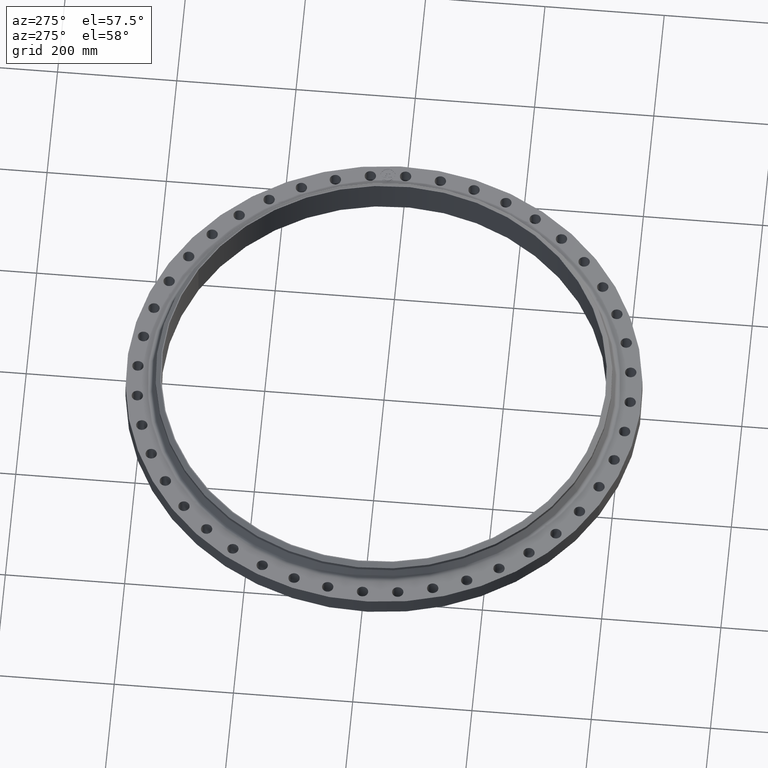
[diagram: clean part render]
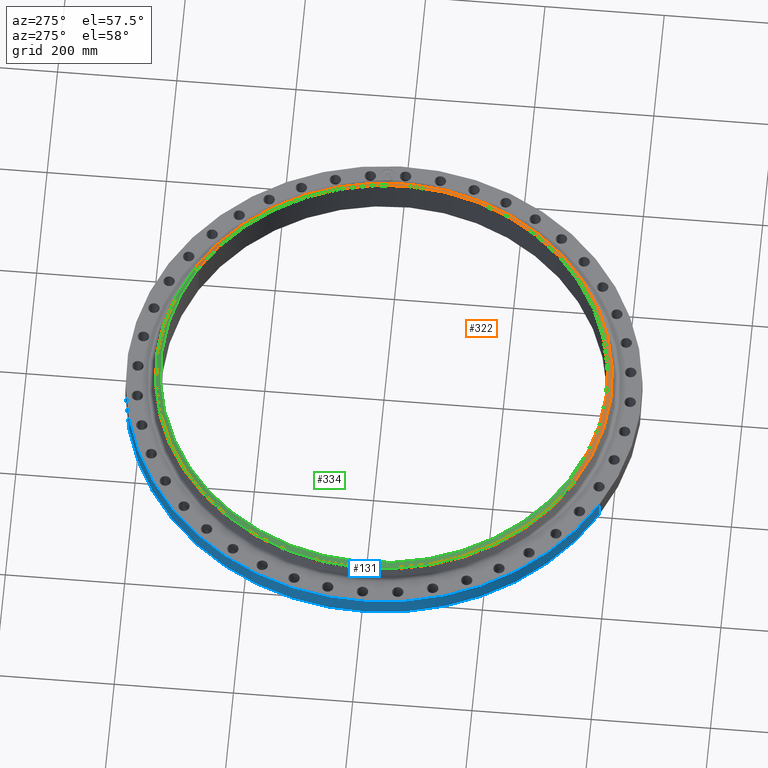
[diagram: same view with three faces highlighted in distinct colors, each labeled with its STEP entity id]
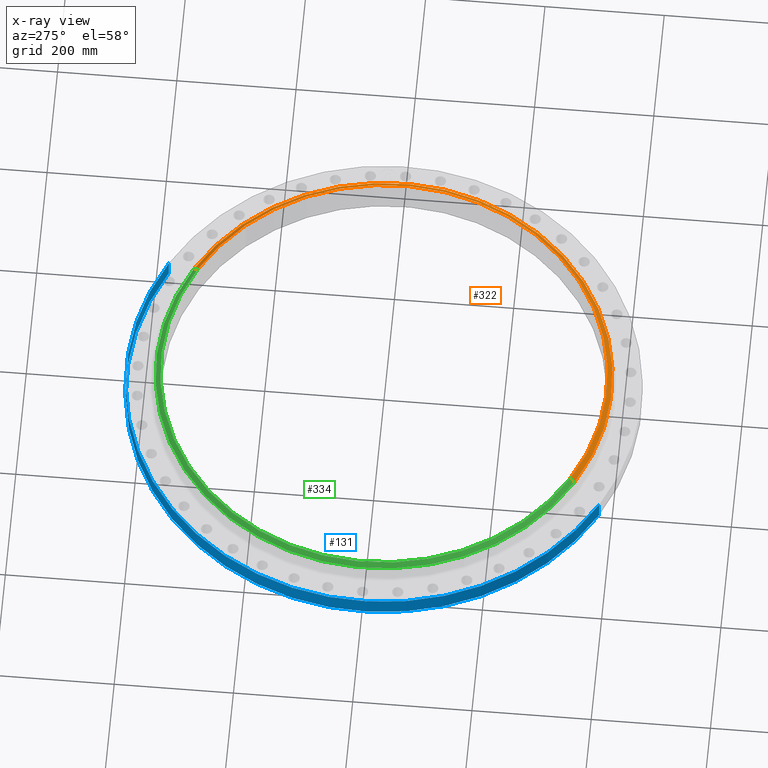
[diagram: x-ray of the same camera — body ghosted, the three highlighted faces saturated]
A machine part, auxiliary view with three faces highlighted in distinct colors.
The next image is the same camera in x-ray (body ghosted, the three faces saturated) — at least one of them is partly hidden behind the body in this view.
Their STEP definitions:

[orange] entity #322 — the highlighted conical surface has half-angle 52.5 deg.
#270=AXIS2_PLACEMENT_3D('Circle Axis2P3D',#268,#269,$) ;
#295=AXIS2_PLACEMENT_3D('Cone Axis2P3D',#292,#293,#294) ;
#306=AXIS2_PLACEMENT_3D('Circle Axis2P3D',#304,#305,$) ;
#258=CARTESIAN_POINT('Vertex',(-7.20576584525,-13.1900659053,2.26021031627)) ;
#265=CARTESIAN_POINT('Vertex',(7.20576584525,13.1900659053,2.26021031627)) ;
#268=CARTESIAN_POINT('Axis2P3D Location',(0.,0.,2.26021031627)) ;
#292=CARTESIAN_POINT('Axis2P3D Location',(0.,0.,2.50000000001)) ;
#297=CARTESIAN_POINT('Line Origine',(7.13085560484,13.05294363,2.38010515814)) ;
#301=CARTESIAN_POINT('Vertex',(7.05594536444,12.9158213547,2.50000000001)) ;
#304=CARTESIAN_POINT('Axis2P3D Location',(0.,0.,2.50000000001)) ;
#308=CARTESIAN_POINT('Vertex',(-7.05594536444,-12.9158213547,2.50000000001)) ;
#311=CARTESIAN_POINT('Line Origine',(-7.13085560484,-13.05294363,2.38010515814)) ;
#269=DIRECTION('Axis2P3D Direction',(0.,0.,-0.0393700787402)) ;
#293=DIRECTION('Axis2P3D Direction',(-0.,-0.,-0.0393700787402)) ;
#294=DIRECTION('Axis2P3D XDirection',(-0.0188750212049,-0.0345504945626,0.)) ;
#298=DIRECTION('Vector Direction',(0.014974561121,0.02741075027,-0.023966985394)) ;
#305=DIRECTION('Axis2P3D Direction',(0.,-0.,-0.0393700787402)) ;
#312=DIRECTION('Vector Direction',(-0.014974561121,-0.02741075027,-0.023966985394)) ;
#299=VECTOR('Line Direction',#298,0.0393700787402) ;
#313=VECTOR('Line Direction',#312,0.0393700787402) ;
#317=ORIENTED_EDGE('',*,*,#303,.F.) ;
#318=ORIENTED_EDGE('',*,*,#310,.T.) ;
#319=ORIENTED_EDGE('',*,*,#315,.T.) ;
#320=ORIENTED_EDGE('',*,*,#272,.F.) ;
#322=ADVANCED_FACE('PartBody',(#321),#296,.T.) ;
#271=CIRCLE('generated circle',#270,15.0300000001) ;
#307=CIRCLE('generated circle',#306,14.7175000001) ;
#296=CONICAL_SURFACE('Cone',#295,14.7175000001,0.916297857297) ;
#272=EDGE_CURVE('',#266,#259,#271,.T.) ;
#303=EDGE_CURVE('',#302,#266,#300,.T.) ;
#310=EDGE_CURVE('',#302,#309,#307,.T.) ;
#315=EDGE_CURVE('',#309,#259,#314,.T.) ;
#316=EDGE_LOOP('',(#317,#318,#319,#320)) ;
#321=FACE_OUTER_BOUND('',#316,.T.) ;
#300=LINE('Line',#297,#299) ;
#314=LINE('Line',#311,#313) ;
#259=VERTEX_POINT('',#258) ;
#266=VERTEX_POINT('',#265) ;
#302=VERTEX_POINT('',#301) ;
#309=VERTEX_POINT('',#308) ;

[blue] entity #131 — the highlighted cylindrical surface (partial cylindrical patch) has radius 431.8 mm, axis along (0, 0, -1).
#95=AXIS2_PLACEMENT_3D('Cylinder Axis2P3D',#92,#93,#94) ;
#99=AXIS2_PLACEMENT_3D('Circle Axis2P3D',#97,#98,$) ;
#115=AXIS2_PLACEMENT_3D('Circle Axis2P3D',#113,#114,$) ;
#92=CARTESIAN_POINT('Axis2P3D Location',(0.,0.,1.30000000001)) ;
#97=CARTESIAN_POINT('Axis2P3D Location',(0.,0.,1.95818864186E-015)) ;
#101=CARTESIAN_POINT('Vertex',(-8.1502341563,-14.9189035522,1.95818864186E-015)) ;
#103=CARTESIAN_POINT('Vertex',(8.1502341563,14.9189035522,1.95818864186E-015)) ;
#106=CARTESIAN_POINT('Line Origine',(-8.1502341563,-14.9189035522,0.625000000003)) ;
#110=CARTESIAN_POINT('Vertex',(-8.1502341563,-14.9189035522,1.25000000001)) ;
#113=CARTESIAN_POINT('Axis2P3D Location',(0.,0.,1.25000000001)) ;
#117=CARTESIAN_POINT('Vertex',(8.1502341563,14.9189035522,1.25000000001)) ;
#120=CARTESIAN_POINT('Line Origine',(8.1502341563,14.9189035522,0.625000000003)) ;
#93=DIRECTION('Axis2P3D Direction',(0.,0.,-0.0393700787402)) ;
#94=DIRECTION('Axis2P3D XDirection',(0.0188750212049,0.0345504945626,0.)) ;
#98=DIRECTION('Axis2P3D Direction',(0.,0.,-0.0393700787402)) ;
#107=DIRECTION('Vector Direction',(0.,0.,-0.0393700787402)) ;
#114=DIRECTION('Axis2P3D Direction',(0.,0.,-0.0393700787402)) ;
#121=DIRECTION('Vector Direction',(0.,0.,-0.0393700787402)) ;
#108=VECTOR('Line Direction',#107,0.0393700787402) ;
#122=VECTOR('Line Direction',#121,0.0393700787402) ;
#126=ORIENTED_EDGE('',*,*,#105,.F.) ;
#127=ORIENTED_EDGE('',*,*,#112,.T.) ;
#128=ORIENTED_EDGE('',*,*,#119,.T.) ;
#129=ORIENTED_EDGE('',*,*,#124,.F.) ;
#131=ADVANCED_FACE('PartBody',(#130),#96,.T.) ;
#100=CIRCLE('generated circle',#99,17.0000000001) ;
#116=CIRCLE('generated circle',#115,17.0000000001) ;
#96=CYLINDRICAL_SURFACE('generated cylinder',#95,17.0000000001) ;
#105=EDGE_CURVE('',#102,#104,#100,.T.) ;
#112=EDGE_CURVE('',#102,#111,#109,.F.) ;
#119=EDGE_CURVE('',#111,#118,#116,.T.) ;
#124=EDGE_CURVE('',#104,#118,#123,.F.) ;
#125=EDGE_LOOP('',(#126,#127,#128,#129)) ;
#130=FACE_OUTER_BOUND('',#125,.T.) ;
#109=LINE('Line',#106,#108) ;
#123=LINE('Line',#120,#122) ;
#102=VERTEX_POINT('',#101) ;
#104=VERTEX_POINT('',#103) ;
#111=VERTEX_POINT('',#110) ;
#118=VERTEX_POINT('',#117) ;

[green] entity #334 — the highlighted conical surface has half-angle 52.5 deg.
#282=AXIS2_PLACEMENT_3D('Circle Axis2P3D',#280,#281,$) ;
#295=AXIS2_PLACEMENT_3D('Cone Axis2P3D',#292,#293,#294) ;
#325=AXIS2_PLACEMENT_3D('Circle Axis2P3D',#323,#324,$) ;
#258=CARTESIAN_POINT('Vertex',(-7.20576584525,-13.1900659053,2.26021031627)) ;
#265=CARTESIAN_POINT('Vertex',(7.20576584525,13.1900659053,2.26021031627)) ;
#280=CARTESIAN_POINT('Axis2P3D Location',(0.,0.,2.26021031627)) ;
#292=CARTESIAN_POINT('Axis2P3D Location',(0.,0.,2.50000000001)) ;
#297=CARTESIAN_POINT('Line Origine',(7.13085560484,13.05294363,2.38010515814)) ;
#301=CARTESIAN_POINT('Vertex',(7.05594536444,12.9158213547,2.50000000001)) ;
#308=CARTESIAN_POINT('Vertex',(-7.05594536444,-12.9158213547,2.50000000001)) ;
#311=CARTESIAN_POINT('Line Origine',(-7.13085560484,-13.05294363,2.38010515814)) ;
#323=CARTESIAN_POINT('Axis2P3D Location',(0.,0.,2.50000000001)) ;
#281=DIRECTION('Axis2P3D Direction',(0.,0.,-0.0393700787402)) ;
#293=DIRECTION('Axis2P3D Direction',(-0.,-0.,-0.0393700787402)) ;
#294=DIRECTION('Axis2P3D XDirection',(-0.0188750212049,-0.0345504945626,0.)) ;
#298=DIRECTION('Vector Direction',(0.014974561121,0.02741075027,-0.023966985394)) ;
#312=DIRECTION('Vector Direction',(-0.014974561121,-0.02741075027,-0.023966985394)) ;
#324=DIRECTION('Axis2P3D Direction',(0.,-0.,-0.0393700787402)) ;
#299=VECTOR('Line Direction',#298,0.0393700787402) ;
#313=VECTOR('Line Direction',#312,0.0393700787402) ;
#329=ORIENTED_EDGE('',*,*,#315,.F.) ;
#330=ORIENTED_EDGE('',*,*,#327,.T.) ;
#331=ORIENTED_EDGE('',*,*,#303,.T.) ;
#332=ORIENTED_EDGE('',*,*,#284,.F.) ;
#334=ADVANCED_FACE('PartBody',(#333),#296,.T.) ;
#283=CIRCLE('generated circle',#282,15.0300000001) ;
#326=CIRCLE('generated circle',#325,14.7175000001) ;
#296=CONICAL_SURFACE('Cone',#295,14.7175000001,0.916297857297) ;
#284=EDGE_CURVE('',#259,#266,#283,.T.) ;
#303=EDGE_CURVE('',#302,#266,#300,.T.) ;
#315=EDGE_CURVE('',#309,#259,#314,.T.) ;
#327=EDGE_CURVE('',#309,#302,#326,.T.) ;
#328=EDGE_LOOP('',(#329,#330,#331,#332)) ;
#333=FACE_OUTER_BOUND('',#328,.T.) ;
#300=LINE('Line',#297,#299) ;
#314=LINE('Line',#311,#313) ;
#259=VERTEX_POINT('',#258) ;
#266=VERTEX_POINT('',#265) ;
#302=VERTEX_POINT('',#301) ;
#309=VERTEX_POINT('',#308) ;